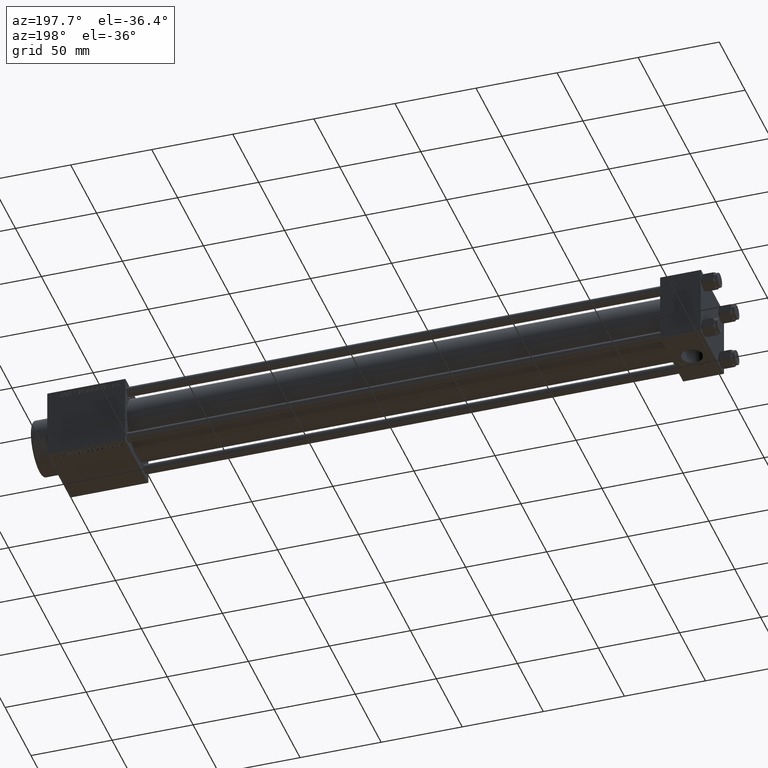
[diagram: clean part render]
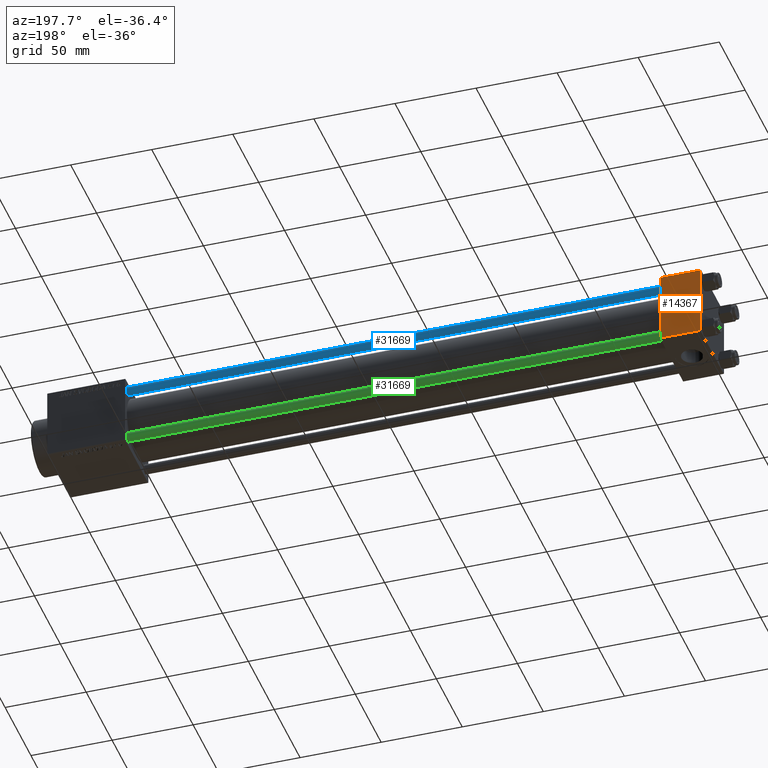
[diagram: same view with three faces highlighted in distinct colors, each labeled with its STEP entity id]
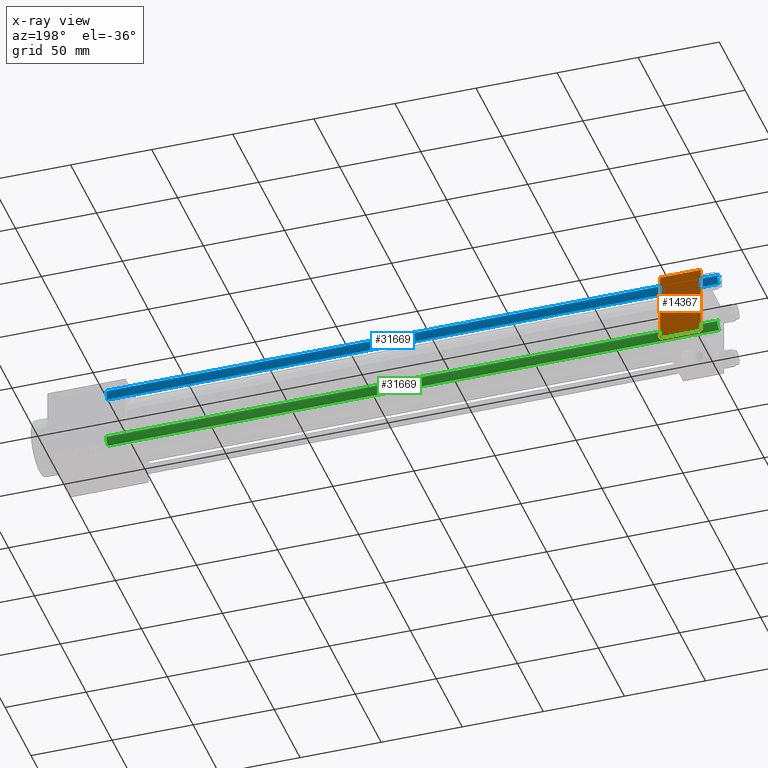
[diagram: x-ray of the same camera — body ghosted, the three highlighted faces saturated]
A machine part, auxiliary view with three faces highlighted in distinct colors.
The next image is the same camera in x-ray (body ghosted, the three faces saturated) — at least one of them is partly hidden behind the body in this view.
Their STEP definitions:

[orange] entity #14367 — the highlighted planar face has unit normal (0, 1, 0).
#4657 = EDGE_CURVE ( 'NONE', #8318, #15753, #12609, .T. ) ;
#5563 = CARTESIAN_POINT ( 'NONE',  ( 25.00000000000000000, 22.50000000000000000, -21.99999999999998224 ) ) ;
#8156 = CARTESIAN_POINT ( 'NONE',  ( 0.000000000000000000, 22.50000000000000000, 22.50000000000000355 ) ) ;
#8273 = DIRECTION ( 'NONE',  ( 1.000000000000000000, 0.000000000000000000, 0.000000000000000000 ) ) ;
#8318 = VERTEX_POINT ( 'NONE', #27340 ) ;
#8422 = DIRECTION ( 'NONE',  ( -1.000000000000000000, 0.000000000000000000, 0.000000000000000000 ) ) ;
#8650 = PLANE ( 'NONE',  #50572 ) ;
#8910 = DIRECTION ( 'NONE',  ( -0.000000000000000000, 1.000000000000000000, 0.000000000000000000 ) ) ;
#11989 = DIRECTION ( 'NONE',  ( 0.000000000000000000, 0.000000000000000000, -1.000000000000000000 ) ) ;
#12032 = EDGE_CURVE ( 'NONE', #8318, #34142, #30785, .T. ) ;
#12609 = LINE ( 'NONE', #13123, #49531 ) ;
#13123 = CARTESIAN_POINT ( 'NONE',  ( 25.00000000000000000, 22.50000000000000000, 21.99999999999999645 ) ) ;
#14367 = ADVANCED_FACE ( 'NONE', ( #40489 ), #8650, .T. ) ;
#15753 = VERTEX_POINT ( 'NONE', #44481 ) ;
#16347 = CARTESIAN_POINT ( 'NONE',  ( 25.00000000000000000, 22.50000000000000000, 22.50000000000000355 ) ) ;
#18639 = ORIENTED_EDGE ( 'NONE', *, *, #4657, .T. ) ;
#23091 = CARTESIAN_POINT ( 'NONE',  ( 25.00000000000000000, 22.50000000000000000, -21.99999999999996803 ) ) ;
#23701 = VECTOR ( 'NONE', #26727, 1000.000000000000000 ) ;
#26172 = CARTESIAN_POINT ( 'NONE',  ( 0.000000000000000000, 22.50000000000000000, -21.99999999999996803 ) ) ;
#26727 = DIRECTION ( 'NONE',  ( 0.000000000000000000, 0.000000000000000000, -1.000000000000000000 ) ) ;
#27340 = CARTESIAN_POINT ( 'NONE',  ( 0.000000000000000000, 22.50000000000000000, 21.99999999999999645 ) ) ;
#28966 = LINE ( 'NONE', #5563, #29513 ) ;
#29513 = VECTOR ( 'NONE', #8422, 1000.000000000000000 ) ;
#30785 = LINE ( 'NONE', #8156, #50503 ) ;
#31599 = CARTESIAN_POINT ( 'NONE',  ( 25.00000000000000000, 22.50000000000000000, 22.50000000000000355 ) ) ;
#31797 = ORIENTED_EDGE ( 'NONE', *, *, #12032, .F. ) ;
#33128 = EDGE_CURVE ( 'NONE', #15753, #49439, #35204, .T. ) ;
#34142 = VERTEX_POINT ( 'NONE', #26172 ) ;
#34345 = EDGE_CURVE ( 'NONE', #49439, #34142, #28966, .T. ) ;
#35204 = LINE ( 'NONE', #31599, #23701 ) ;
#36654 = DIRECTION ( 'NONE',  ( 0.000000000000000000, -0.000000000000000000, 1.000000000000000000 ) ) ;
#40489 = FACE_OUTER_BOUND ( 'NONE', #43853, .T. ) ;
#43853 = EDGE_LOOP ( 'NONE', ( #48763, #47207, #31797, #18639 ) ) ;
#44481 = CARTESIAN_POINT ( 'NONE',  ( 25.00000000000000000, 22.50000000000000000, 21.99999999999999645 ) ) ;
#47207 = ORIENTED_EDGE ( 'NONE', *, *, #34345, .T. ) ;
#48763 = ORIENTED_EDGE ( 'NONE', *, *, #33128, .T. ) ;
#49439 = VERTEX_POINT ( 'NONE', #23091 ) ;
#49531 = VECTOR ( 'NONE', #8273, 1000.000000000000000 ) ;
#50503 = VECTOR ( 'NONE', #11989, 1000.000000000000000 ) ;
#50572 = AXIS2_PLACEMENT_3D ( 'NONE', #16347, #8910, #36654 ) ;

[blue] entity #31669 — the highlighted cylindrical surface (edge-blend (fillet) strip) has radius 3 mm, axis along (-1, 0, 0).
#1306 = CARTESIAN_POINT ( 'NONE',  ( 0.000000000000000000, 0.000000000000000000, 377.5000000000000000 ) ) ;
#1759 = AXIS2_PLACEMENT_3D ( 'NONE', #22938, #38607, #3397 ) ;
#1810 = DIRECTION ( 'NONE',  ( 0.000000000000000000, 0.000000000000000000, -1.000000000000000000 ) ) ;
#2413 = DIRECTION ( 'NONE',  ( -0.000000000000000000, -0.000000000000000000, -1.000000000000000000 ) ) ;
#3397 = DIRECTION ( 'NONE',  ( 1.000000000000000000, 0.000000000000000000, 0.000000000000000000 ) ) ;
#4966 = DIRECTION ( 'NONE',  ( -0.000000000000000000, -0.000000000000000000, -1.000000000000000000 ) ) ;
#5692 = ORIENTED_EDGE ( 'NONE', *, *, #40289, .F. ) ;
#5842 = EDGE_CURVE ( 'NONE', #30070, #9980, #21434, .T. ) ;
#6840 = CIRCLE ( 'NONE', #44554, 3.000000000000000444 ) ;
#9980 = VERTEX_POINT ( 'NONE', #17495 ) ;
#10389 = CARTESIAN_POINT ( 'NONE',  ( 3.000000000000000444, 3.673940397442060361E-16, 378.0000000000000000 ) ) ;
#10825 = VECTOR ( 'NONE', #31327, 1000.000000000000000 ) ;
#12906 = ORIENTED_EDGE ( 'NONE', *, *, #43163, .T. ) ;
#16545 = CIRCLE ( 'NONE', #1759, 3.000000000000000444 ) ;
#17495 = CARTESIAN_POINT ( 'NONE',  ( 3.000000000000000444, 3.673940397442060361E-16, 0.5000000000000004441 ) ) ;
#20029 = VECTOR ( 'NONE', #2413, 1000.000000000000000 ) ;
#21404 = DIRECTION ( 'NONE',  ( -1.000000000000000000, 0.000000000000000000, 0.000000000000000000 ) ) ;
#21434 = LINE ( 'NONE', #10389, #20029 ) ;
#22938 = CARTESIAN_POINT ( 'NONE',  ( 0.000000000000000000, 0.000000000000000000, 0.5000000000000004441 ) ) ;
#25961 = VERTEX_POINT ( 'NONE', #32651 ) ;
#27453 = CARTESIAN_POINT ( 'NONE',  ( -3.000000000000000444, 0.000000000000000000, 378.0000000000000000 ) ) ;
#30064 = CARTESIAN_POINT ( 'NONE',  ( 3.000000000000000444, 3.673940397442060361E-16, 377.5000000000000000 ) ) ;
#30070 = VERTEX_POINT ( 'NONE', #30064 ) ;
#31053 = AXIS2_PLACEMENT_3D ( 'NONE', #40162, #4966, #21404 ) ;
#31327 = DIRECTION ( 'NONE',  ( -0.000000000000000000, -0.000000000000000000, -1.000000000000000000 ) ) ;
#31669 = ADVANCED_FACE ( 'NONE', ( #45279 ), #44528, .T. ) ;
#32651 = CARTESIAN_POINT ( 'NONE',  ( -3.000000000000000444, 0.000000000000000000, 377.5000000000000000 ) ) ;
#32717 = ORIENTED_EDGE ( 'NONE', *, *, #5842, .T. ) ;
#33425 = DIRECTION ( 'NONE',  ( 1.000000000000000000, 0.000000000000000000, 0.000000000000000000 ) ) ;
#34022 = EDGE_LOOP ( 'NONE', ( #39860, #32717, #12906, #5692 ) ) ;
#38607 = DIRECTION ( 'NONE',  ( -0.000000000000000000, -0.000000000000000000, 1.000000000000000000 ) ) ;
#39273 = LINE ( 'NONE', #27453, #10825 ) ;
#39860 = ORIENTED_EDGE ( 'NONE', *, *, #46920, .T. ) ;
#40162 = CARTESIAN_POINT ( 'NONE',  ( 0.000000000000000000, 0.000000000000000000, 378.0000000000000000 ) ) ;
#40289 = EDGE_CURVE ( 'NONE', #25961, #47951, #39273, .T. ) ;
#40865 = CARTESIAN_POINT ( 'NONE',  ( -3.000000000000000444, 0.000000000000000000, 0.5000000000000004441 ) ) ;
#43163 = EDGE_CURVE ( 'NONE', #9980, #47951, #16545, .T. ) ;
#44528 = CYLINDRICAL_SURFACE ( 'NONE', #31053, 3.000000000000000444 ) ;
#44554 = AXIS2_PLACEMENT_3D ( 'NONE', #1306, #1810, #33425 ) ;
#45279 = FACE_OUTER_BOUND ( 'NONE', #34022, .T. ) ;
#46920 = EDGE_CURVE ( 'NONE', #25961, #30070, #6840, .T. ) ;
#47951 = VERTEX_POINT ( 'NONE', #40865 ) ;

[green] entity #31669 — the highlighted cylindrical surface (edge-blend (fillet) strip) has radius 3 mm, axis along (1, -0, 0).
#1306 = CARTESIAN_POINT ( 'NONE',  ( 0.000000000000000000, 0.000000000000000000, 377.5000000000000000 ) ) ;
#1759 = AXIS2_PLACEMENT_3D ( 'NONE', #22938, #38607, #3397 ) ;
#1810 = DIRECTION ( 'NONE',  ( 0.000000000000000000, 0.000000000000000000, -1.000000000000000000 ) ) ;
#2413 = DIRECTION ( 'NONE',  ( -0.000000000000000000, -0.000000000000000000, -1.000000000000000000 ) ) ;
#3397 = DIRECTION ( 'NONE',  ( 1.000000000000000000, 0.000000000000000000, 0.000000000000000000 ) ) ;
#4966 = DIRECTION ( 'NONE',  ( -0.000000000000000000, -0.000000000000000000, -1.000000000000000000 ) ) ;
#5692 = ORIENTED_EDGE ( 'NONE', *, *, #40289, .F. ) ;
#5842 = EDGE_CURVE ( 'NONE', #30070, #9980, #21434, .T. ) ;
#6840 = CIRCLE ( 'NONE', #44554, 3.000000000000000444 ) ;
#9980 = VERTEX_POINT ( 'NONE', #17495 ) ;
#10389 = CARTESIAN_POINT ( 'NONE',  ( 3.000000000000000444, 3.673940397442060361E-16, 378.0000000000000000 ) ) ;
#10825 = VECTOR ( 'NONE', #31327, 1000.000000000000000 ) ;
#12906 = ORIENTED_EDGE ( 'NONE', *, *, #43163, .T. ) ;
#16545 = CIRCLE ( 'NONE', #1759, 3.000000000000000444 ) ;
#17495 = CARTESIAN_POINT ( 'NONE',  ( 3.000000000000000444, 3.673940397442060361E-16, 0.5000000000000004441 ) ) ;
#20029 = VECTOR ( 'NONE', #2413, 1000.000000000000000 ) ;
#21404 = DIRECTION ( 'NONE',  ( -1.000000000000000000, 0.000000000000000000, 0.000000000000000000 ) ) ;
#21434 = LINE ( 'NONE', #10389, #20029 ) ;
#22938 = CARTESIAN_POINT ( 'NONE',  ( 0.000000000000000000, 0.000000000000000000, 0.5000000000000004441 ) ) ;
#25961 = VERTEX_POINT ( 'NONE', #32651 ) ;
#27453 = CARTESIAN_POINT ( 'NONE',  ( -3.000000000000000444, 0.000000000000000000, 378.0000000000000000 ) ) ;
#30064 = CARTESIAN_POINT ( 'NONE',  ( 3.000000000000000444, 3.673940397442060361E-16, 377.5000000000000000 ) ) ;
#30070 = VERTEX_POINT ( 'NONE', #30064 ) ;
#31053 = AXIS2_PLACEMENT_3D ( 'NONE', #40162, #4966, #21404 ) ;
#31327 = DIRECTION ( 'NONE',  ( -0.000000000000000000, -0.000000000000000000, -1.000000000000000000 ) ) ;
#31669 = ADVANCED_FACE ( 'NONE', ( #45279 ), #44528, .T. ) ;
#32651 = CARTESIAN_POINT ( 'NONE',  ( -3.000000000000000444, 0.000000000000000000, 377.5000000000000000 ) ) ;
#32717 = ORIENTED_EDGE ( 'NONE', *, *, #5842, .T. ) ;
#33425 = DIRECTION ( 'NONE',  ( 1.000000000000000000, 0.000000000000000000, 0.000000000000000000 ) ) ;
#34022 = EDGE_LOOP ( 'NONE', ( #39860, #32717, #12906, #5692 ) ) ;
#38607 = DIRECTION ( 'NONE',  ( -0.000000000000000000, -0.000000000000000000, 1.000000000000000000 ) ) ;
#39273 = LINE ( 'NONE', #27453, #10825 ) ;
#39860 = ORIENTED_EDGE ( 'NONE', *, *, #46920, .T. ) ;
#40162 = CARTESIAN_POINT ( 'NONE',  ( 0.000000000000000000, 0.000000000000000000, 378.0000000000000000 ) ) ;
#40289 = EDGE_CURVE ( 'NONE', #25961, #47951, #39273, .T. ) ;
#40865 = CARTESIAN_POINT ( 'NONE',  ( -3.000000000000000444, 0.000000000000000000, 0.5000000000000004441 ) ) ;
#43163 = EDGE_CURVE ( 'NONE', #9980, #47951, #16545, .T. ) ;
#44528 = CYLINDRICAL_SURFACE ( 'NONE', #31053, 3.000000000000000444 ) ;
#44554 = AXIS2_PLACEMENT_3D ( 'NONE', #1306, #1810, #33425 ) ;
#45279 = FACE_OUTER_BOUND ( 'NONE', #34022, .T. ) ;
#46920 = EDGE_CURVE ( 'NONE', #25961, #30070, #6840, .T. ) ;
#47951 = VERTEX_POINT ( 'NONE', #40865 ) ;